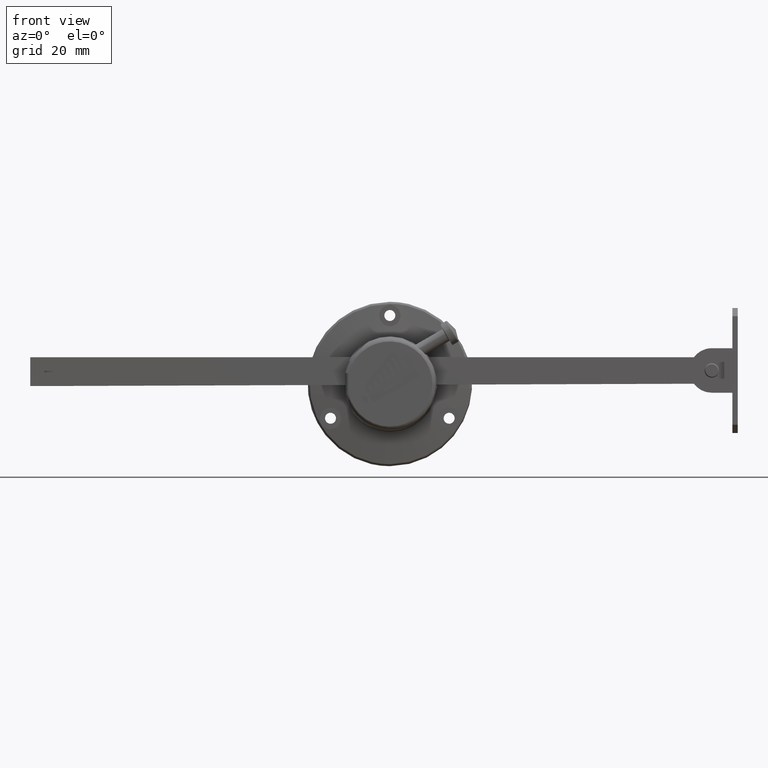
[diagram: clean part render]
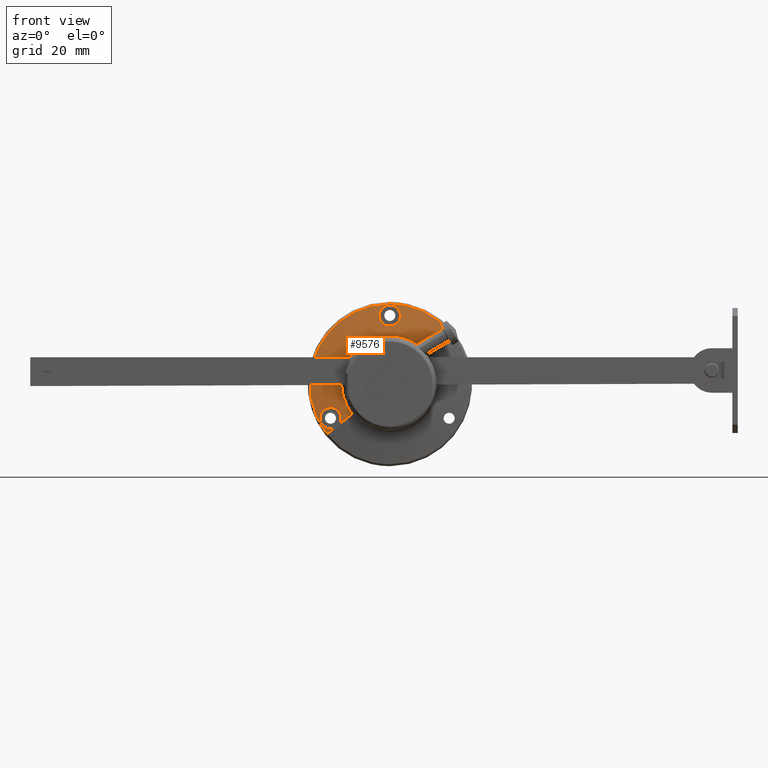
[diagram: same view with one face highlighted and labeled with its STEP entity id]
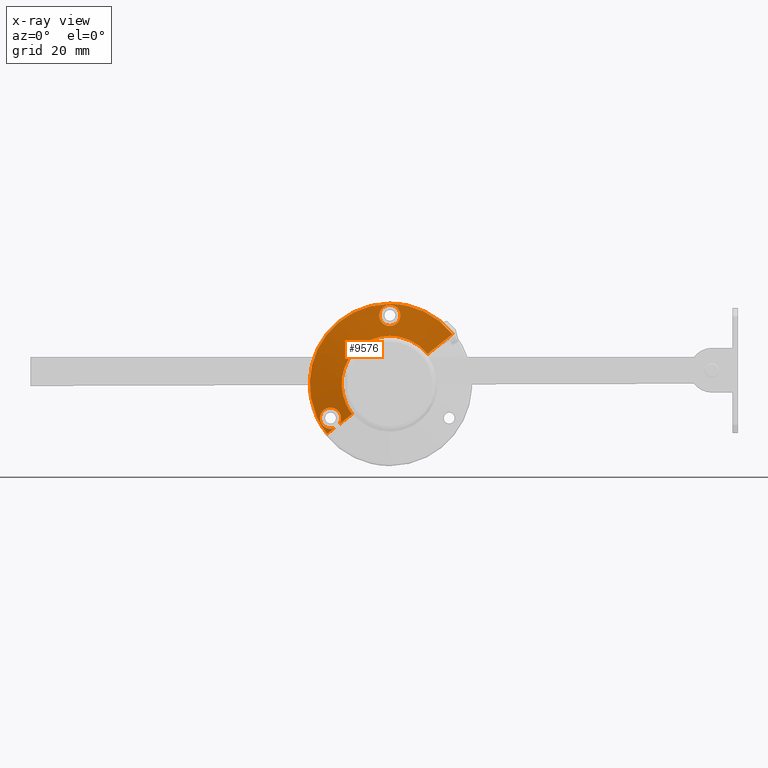
[diagram: x-ray of the same camera — body ghosted, the highlighted face saturated]
A machine part, front view. The second image highlights one B-rep face of the part: STEP entity #9576.
The next image is the same camera in x-ray: the body ghosted, the highlighted face saturated — about 0% of this face is hidden behind the body in this view.
In plain terms, the highlighted face is a freeform B-spline surface patch.
Its self-contained STEP definition (entity closure, byte-faithful):
#7901=CARTESIAN_POINT('',(-23.352887390696079,-3.874858132988049,1.174833772036257));
#7902=VERTEX_POINT('',#7901);
#7916=CARTESIAN_POINT('',(-1.144917E-013,-3.874858147016896,23.382420286659560));
#7917=VERTEX_POINT('',#7916);
#7918=CARTESIAN_POINT('',(-1.144917E-013,-3.874858147016896,23.382420286659560));
#7919=CARTESIAN_POINT('',(-22.235671195849012,-3.874858140002472,23.382420289567143));
#7920=CARTESIAN_POINT('',(-23.352887390696079,-3.874858132988049,1.174833772036257));
#7928=(BOUNDED_CURVE()B_SPLINE_CURVE(2,(#7918,#7919,#7920),.UNSPECIFIED.,.F.,.U.)B_SPLINE_CURVE_WITH_KNOTS((3,3),(0.0,0.241203951710024),.UNSPECIFIED.)CURVE()GEOMETRIC_REPRESENTATION_ITEM()RATIONAL_B_SPLINE_CURVE((1.0,0.717411992772506,0.980114737938071))REPRESENTATION_ITEM(''));
#7929=EDGE_CURVE('',#7917,#7902,#7928,.T.);
#7931=CARTESIAN_POINT('',(18.299272881391150,-3.874858140116030,14.555898898998050));
#7932=VERTEX_POINT('',#7931);
#7933=CARTESIAN_POINT('',(18.299272881391147,-3.874858140116030,14.555898898998041));
#7934=CARTESIAN_POINT('',(11.278340688014316,-3.874858144283119,23.382420285364109));
#7935=CARTESIAN_POINT('',(-1.144917E-013,-3.874858147016896,23.382420286659560));
#7943=(BOUNDED_CURVE()B_SPLINE_CURVE(2,(#7933,#7934,#7935),.UNSPECIFIED.,.F.,.U.)B_SPLINE_CURVE_WITH_KNOTS((3,3),(0.857863877670425,1.0),.UNSPECIFIED.)CURVE()GEOMETRIC_REPRESENTATION_ITEM()RATIONAL_B_SPLINE_CURVE((0.856305618554457,0.833477174484913,1.0))REPRESENTATION_ITEM(''));
#7944=EDGE_CURVE('',#7932,#7917,#7943,.T.);
#8029=CARTESIAN_POINT('',(-18.299272881391349,-3.874858140116030,-14.555898898997970));
#8030=VERTEX_POINT('',#8029);
#8044=CARTESIAN_POINT('',(-23.352887390696079,-3.874858132988049,1.174833772036257));
#8045=CARTESIAN_POINT('',(-23.382420400872768,-3.874858133187922,0.587788089782957));
#8046=CARTESIAN_POINT('',(-23.382420399423150,-3.874858133397013,5.667491E-009));
#8047=CARTESIAN_POINT('',(-23.382420379285172,-3.874858136301691,-8.165506730892572));
#8048=CARTESIAN_POINT('',(-18.299272881391349,-3.874858140116030,-14.555898898997972));
#8056=(BOUNDED_CURVE()B_SPLINE_CURVE(2,(#8044,#8045,#8046,#8047,#8048),.UNSPECIFIED.,.F.,.U.)B_SPLINE_CURVE_WITH_KNOTS((3,2,3),(0.241203951710024,0.250000000000000,0.357863877670426),.UNSPECIFIED.)CURVE()GEOMETRIC_REPRESENTATION_ITEM()RATIONAL_B_SPLINE_CURVE((0.980114737938071,0.989694788414041,1.0,0.873629606701634,0.856305618554456))REPRESENTATION_ITEM(''));
#8057=EDGE_CURVE('',#7902,#8030,#8056,.T.);
#8693=CARTESIAN_POINT('',(-2.881011489573469,-4.397045591571519,18.855543512198079));
#8694=VERTEX_POINT('',#8693);
#8700=CARTESIAN_POINT('',(2.198336219575596,-4.533402191943900,17.814290130344350));
#8701=VERTEX_POINT('',#8700);
#8702=CARTESIAN_POINT('',(-2.881011489573469,-4.397045591571519,18.855543512198079));
#8703=CARTESIAN_POINT('',(-2.875618866733810,-4.398770381099569,18.841972541301370));
#8704=CARTESIAN_POINT('',(-2.870127798608516,-4.400493277091499,18.828431661018470));
#8705=CARTESIAN_POINT('',(-2.845223401329175,-4.408161260421270,18.768233462741811));
#8706=CARTESIAN_POINT('',(-2.824722572479440,-4.414085084619106,18.721908504626299));
#8707=CARTESIAN_POINT('',(-2.781306414099857,-4.425883654190328,18.629996269562419));
#8708=CARTESIAN_POINT('',(-2.758327721357979,-4.431772685859257,18.584299140820072));
#8709=CARTESIAN_POINT('',(-2.686417500051062,-4.449187904192584,18.449675248120109));
#8710=CARTESIAN_POINT('',(-2.634406094023323,-4.460500983143810,18.362910128414509));
#8711=CARTESIAN_POINT('',(-2.466486175163476,-4.493540484598683,18.111322432733289));
#8712=CARTESIAN_POINT('',(-2.338806597604011,-4.514378750975107,17.955123919322169));
#8713=CARTESIAN_POINT('',(-2.158891276880443,-4.538746495380861,17.774740717255298));
#8714=CARTESIAN_POINT('',(-2.121798412040752,-4.543544662252446,17.739344310855479));
#8715=CARTESIAN_POINT('',(-2.046325353136025,-4.552864846563949,17.670805846164690));
#8716=CARTESIAN_POINT('',(-2.007872736275088,-4.557397628215186,17.637583598933698));
#8717=CARTESIAN_POINT('',(-1.890401847541414,-4.570613952735581,17.541005434573059));
#8718=CARTESIAN_POINT('',(-1.728149141709482,-4.587218756903831,17.420456259033500));
#8719=CARTESIAN_POINT('',(-1.554771202748181,-4.601744200015722,17.316159177886650));
#8720=CARTESIAN_POINT('',(-1.420490849517039,-4.611819071272675,17.244136857908771));
#8721=CARTESIAN_POINT('',(-1.375021651168171,-4.615040590725268,17.221164679772059));
#8722=CARTESIAN_POINT('',(-1.282636464859217,-4.621200457968397,17.177332077507550));
#8723=CARTESIAN_POINT('',(-1.235658006603230,-4.624141369008950,17.156453722238030));
#8724=CARTESIAN_POINT('',(-0.999752911912671,-4.637960789196627,17.058530137347791));
#8725=CARTESIAN_POINT('',(-0.805869341606383,-4.646344406056004,16.999712541798189));
#8726=CARTESIAN_POINT('',(-0.507466352145983,-4.654854674034549,16.940136579146770));
#8727=CARTESIAN_POINT('',(-0.406726720800428,-4.657009978446853,16.925087265836879));
#8728=CARTESIAN_POINT('',(-0.253645037807139,-4.659176366820290,16.909968951780190));
#8729=CARTESIAN_POINT('',(-0.202347659339416,-4.659718369358437,16.906189044085629));
#8730=CARTESIAN_POINT('',(-0.100249859302018,-4.660433831036541,16.901200082067330));
#8731=CARTESIAN_POINT('',(-0.049308003543616,-4.660609516177406,16.899975499700581));
#8732=CARTESIAN_POINT('',(0.204874585605556,-4.660591543353591,16.900100770311958));
#8733=CARTESIAN_POINT('',(0.406550335357039,-4.657728946451349,16.920015437777600));
#8734=CARTESIAN_POINT('',(0.706537350414431,-4.649179220430385,16.979867246492631));
#8735=CARTESIAN_POINT('',(0.806571056993574,-4.645590569276730,17.005029492489701));
#8736=CARTESIAN_POINT('',(1.001714891670723,-4.637134594499355,17.064531959126931));
#8737=CARTESIAN_POINT('',(1.192694267226789,-4.627392293112871,17.133265430607072));
#8738=CARTESIAN_POINT('',(1.375538148301022,-4.615189973167075,17.220039596444451));
#8739=CARTESIAN_POINT('',(1.554292243496929,-4.601782105364642,17.315887353793670));
#8740=CARTESIAN_POINT('',(1.641778449323321,-4.594461089184584,17.368451104431099));
#8741=CARTESIAN_POINT('',(1.896906036479060,-4.570770301063488,17.539574962966039));
#8742=CARTESIAN_POINT('',(2.054069907485744,-4.552999311014955,17.669190409089619));
#8743=CARTESIAN_POINT('',(2.198336219575596,-4.533402191943900,17.814290130344350));
#8744=B_SPLINE_CURVE_WITH_KNOTS('',3,(#8702,#8703,#8704,#8705,#8706,#8707,#8708,#8709,#8710,#8711,#8712,#8713,#8714,#8715,#8716,#8717,#8718,#8719,#8720,#8721,#8722,#8723,#8724,#8725,#8726,#8727,#8728,#8729,#8730,#8731,#8732,#8733,#8734,#8735,#8736,#8737,#8738,#8739,#8740,#8741,#8742,#8743),.UNSPECIFIED.,.F.,.U.,(4,2,2,2,2,2,2,2,1,2,2,2,2,2,2,2,2,2,1,2,2,4),(0.685239153095898,0.687500000000005,0.695312500000005,0.703125000000005,0.718750000000004,0.750000000000003,0.757812500000003,0.765625000000003,0.781250000000003,0.796875000000003,0.804687500000003,0.812500000000003,0.843750000000002,0.859375000000002,0.867187500000002,0.875000000000002,0.906250000000001,0.921875000000001,0.937500000000001,0.953125000000001,0.968750000000000,1.0),.UNSPECIFIED.);
#8745=EDGE_CURVE('',#8694,#8701,#8744,.T.);
#8747=CARTESIAN_POINT('',(2.881010551223967,-4.122445095032800,21.144456114891199));
#8748=VERTEX_POINT('',#8747);
#8749=CARTESIAN_POINT('',(2.198336219575596,-4.533402191943900,17.814290130344350));
#8750=CARTESIAN_POINT('',(2.342602544981720,-4.513805072872928,17.959389856891701));
#8751=CARTESIAN_POINT('',(2.470122184730841,-4.492907325949953,18.116096341114840));
#8752=CARTESIAN_POINT('',(2.637431151129929,-4.459863158295782,18.367791092159269));
#8753=CARTESIAN_POINT('',(2.689175331640133,-4.448562961485179,18.454482886253540));
#8754=CARTESIAN_POINT('',(2.784449010925277,-4.425401949167918,18.633570074821481));
#8755=CARTESIAN_POINT('',(2.828071721297434,-4.413497384623918,18.726315748384739));
#8756=CARTESIAN_POINT('',(2.943750115718965,-4.377711282427292,19.007336386291829));
#8757=CARTESIAN_POINT('',(3.001787709352631,-4.353545968318763,19.200009308385411));
#8758=CARTESIAN_POINT('',(3.060569364031077,-4.316887989051838,19.496916291108750));
#8759=CARTESIAN_POINT('',(3.075439055818446,-4.304571570274265,19.597437321096368));
#8760=CARTESIAN_POINT('',(3.095236410886192,-4.279911035713054,19.800266317089928));
#8761=CARTESIAN_POINT('',(3.100069350229085,-4.267713351304401,19.901366058570229));
#8762=CARTESIAN_POINT('',(3.099858549798542,-4.231497047848994,20.203750332411119));
#8763=CARTESIAN_POINT('',(3.080242618294295,-4.207853796053113,20.404128715870190));
#8764=CARTESIAN_POINT('',(3.030858387213139,-4.178879024191720,20.653048284983001));
#8765=CARTESIAN_POINT('',(3.019696881884091,-4.173099561517766,20.702871439707788));
#8766=CARTESIAN_POINT('',(2.994952844115816,-4.161664448980542,20.801782346865849));
#8767=CARTESIAN_POINT('',(2.981408939989832,-4.156023276188992,20.850743898419822));
#8768=CARTESIAN_POINT('',(2.941508630329513,-4.140905099149601,20.982383237382781));
#8769=CARTESIAN_POINT('',(2.912924547650571,-4.131571181384935,21.064121909844090));
#8770=CARTESIAN_POINT('',(2.881010551223967,-4.122445095032800,21.144456114891199));
#8771=B_SPLINE_CURVE_WITH_KNOTS('',3,(#8749,#8750,#8751,#8752,#8753,#8754,#8755,#8756,#8757,#8758,#8759,#8760,#8761,#8762,#8763,#8764,#8765,#8766,#8767,#8768,#8769,#8770),.UNSPECIFIED.,.F.,.U.,(4,2,2,2,2,2,2,2,2,2,4),(0.0,0.031250000000001,0.046875000000002,0.062500000000002,0.093750000000003,0.109375000000004,0.125000000000004,0.156250000000005,0.164062500000005,0.171875000000005,0.185277388826687),.UNSPECIFIED.);
#8772=EDGE_CURVE('',#8701,#8748,#8771,.T.);
#8802=CARTESIAN_POINT('',(-2.198675755297284,-4.006781863743737,22.185366084447232));
#8803=VERTEX_POINT('',#8802);
#8804=CARTESIAN_POINT('',(2.881010551223967,-4.122445095032800,21.144456114891199));
#8805=CARTESIAN_POINT('',(2.875718032869457,-4.120931652783272,21.157778494242780));
#8806=CARTESIAN_POINT('',(2.832483626450765,-4.108824579571698,21.264447297284480));
#8807=CARTESIAN_POINT('',(2.783358030284652,-4.097083396263708,21.368631152131169));
#8808=CARTESIAN_POINT('',(2.711990868571036,-4.082074955591593,21.502552060653251));
#8809=CARTESIAN_POINT('',(2.687057254741225,-4.077140595810178,21.546709281154119));
#8810=CARTESIAN_POINT('',(2.634861872341323,-4.067408351365118,21.634040768502970));
#8811=CARTESIAN_POINT('',(2.607522639179905,-4.062597884382090,21.677328696265420));
#8812=CARTESIAN_POINT('',(2.465882423785637,-4.039054494003634,21.889745918724032));
#8813=CARTESIAN_POINT('',(2.337614990046211,-4.021925904286033,22.046075094607708));
#8814=CARTESIAN_POINT('',(2.123468757466911,-3.998583341886869,22.260773400710800));
#8815=CARTESIAN_POINT('',(2.048436243358250,-3.991197301155861,22.329016385499049));
#8816=CARTESIAN_POINT('',(1.930257369702268,-3.980711354154560,22.426253860504509));
#8817=CARTESIAN_POINT('',(1.889805977280681,-3.977305987709785,22.457894999057942));
#8818=CARTESIAN_POINT('',(1.807701837887476,-3.970752388587385,22.518894314685909));
#8819=CARTESIAN_POINT('',(1.766045730490508,-3.967602527550614,22.548267152638910));
#8820=CARTESIAN_POINT('',(1.554799684238860,-3.952470562161673,22.689598621439320));
#8821=CARTESIAN_POINT('',(1.376398013257279,-3.942321472246035,22.785117147685121));
#8822=CARTESIAN_POINT('',(1.141640771297999,-3.932001630950604,22.882575246435930));
#8823=CARTESIAN_POINT('',(1.094096264910282,-3.930057166529324,22.900959982380101));
#8824=CARTESIAN_POINT('',(0.997799298009642,-3.926410060465615,22.935474759015399));
#8825=CARTESIAN_POINT('',(0.948930224810906,-3.924704226974871,22.951635113329900));
#8826=CARTESIAN_POINT('',(0.802014141479249,-3.920003156803443,22.996205726012800));
#8827=CARTESIAN_POINT('',(0.703299588844545,-3.917406874112438,23.020869482765580));
#8828=CARTESIAN_POINT('',(0.404908134137304,-3.911174183092902,23.080126928798929));
#8829=CARTESIAN_POINT('',(0.203005233076003,-3.909077309399963,23.100129512615869));
#8830=CARTESIAN_POINT('',(-0.053212403376664,-3.909094386332443,23.099966795376940));
#8831=CARTESIAN_POINT('',(-0.104673069018309,-3.909232112890076,23.098654344388169));
#8832=CARTESIAN_POINT('',(-0.206825679961797,-3.909771487444024,23.093515534586910));
#8833=CARTESIAN_POINT('',(-0.257662860518794,-3.910172853314073,23.089691867720092));
#8834=CARTESIAN_POINT('',(-0.409469018711405,-3.911765883083447,23.074521030628670));
#8835=CARTESIAN_POINT('',(-0.609999531038620,-3.914925051202546,23.044444431976089));
#8836=CARTESIAN_POINT('',(-0.806818288191136,-3.920140707642016,22.994900194489610));
#8837=CARTESIAN_POINT('',(-1.001748687994036,-3.926411225554346,22.935452693892120));
#8838=CARTESIAN_POINT('',(-1.098767112168206,-3.930099106371904,22.900539597367150));
#8839=CARTESIAN_POINT('',(-1.381406226684296,-3.942578508915083,22.782695341431321));
#8840=CARTESIAN_POINT('',(-1.559704281359658,-3.952777727130764,22.686717302697492));
#8841=CARTESIAN_POINT('',(-1.812254198829331,-3.970935440786732,22.517144525776480));
#8842=CARTESIAN_POINT('',(-1.893950456069795,-3.977469275938773,22.456311073493300));
#8843=CARTESIAN_POINT('',(-2.052114844025609,-3.991545150721936,22.325798159363011));
#8844=CARTESIAN_POINT('',(-2.127282043301049,-3.998971270774437,22.257194611557100));
#8845=CARTESIAN_POINT('',(-2.198675755297284,-4.006781863743737,22.185366084447232));
#8846=B_SPLINE_CURVE_WITH_KNOTS('',3,(#8804,#8805,#8806,#8807,#8808,#8809,#8810,#8811,#8812,#8813,#8814,#8815,#8816,#8817,#8818,#8819,#8820,#8821,#8822,#8823,#8824,#8825,#8826,#8827,#8828,#8829,#8830,#8831,#8832,#8833,#8834,#8835,#8836,#8837,#8838,#8839,#8840,#8841,#8842,#8843,#8844,#8845),.UNSPECIFIED.,.F.,.U.,(4,1,2,2,2,2,2,2,2,2,2,2,2,2,2,2,1,2,2,2,2,4),(0.185277388826687,0.187500000000005,0.203125000000004,0.210937500000004,0.218750000000004,0.250000000000005,0.265625000000005,0.273437500000005,0.281250000000005,0.312500000000006,0.320312500000006,0.328125000000006,0.343750000000006,0.375000000000006,0.382812500000006,0.390625000000006,0.406250000000007,0.421875000000007,0.437500000000007,0.468750000000007,0.484375000000007,0.500000000000007),.UNSPECIFIED.);
#8847=EDGE_CURVE('',#8748,#8803,#8846,.T.);
#8849=CARTESIAN_POINT('',(-2.198675755297284,-4.006781863743737,22.185366084447232));
#8850=CARTESIAN_POINT('',(-2.341463125860142,-4.022403049682542,22.041709051459002));
#8851=CARTESIAN_POINT('',(-2.469261701024944,-4.039550601367358,21.885241886228659));
#8852=CARTESIAN_POINT('',(-2.638168540702028,-4.067725804521712,21.631077424675262));
#8853=CARTESIAN_POINT('',(-2.690709243463003,-4.077557252382687,21.542846436243359));
#8854=CARTESIAN_POINT('',(-2.785827015549274,-4.097647107738659,21.363619746155731));
#8855=CARTESIAN_POINT('',(-2.871625624794729,-4.118259826550492,21.180757789838371));
#8856=CARTESIAN_POINT('',(-2.939147552620192,-4.139939281849677,20.990771069639411));
#8857=CARTESIAN_POINT('',(-2.982873563127302,-4.156616952143576,20.845586842025192));
#8858=CARTESIAN_POINT('',(-2.996294303657463,-4.162245962229499,20.796742278048999));
#8859=CARTESIAN_POINT('',(-3.020790995940628,-4.173647942054439,20.698139893379441));
#8860=CARTESIAN_POINT('',(-3.031892218026758,-4.179437021150926,20.648243962424399));
#8861=CARTESIAN_POINT('',(-3.081037242149632,-4.208528295850957,20.398381105943109));
#8862=CARTESIAN_POINT('',(-3.100233542022091,-4.232210953248795,20.197733794164250));
#8863=CARTESIAN_POINT('',(-3.099878817106955,-4.268398596210714,19.895674415821539));
#8864=CARTESIAN_POINT('',(-3.094867137548398,-4.280571990908308,19.794805171402050));
#8865=CARTESIAN_POINT('',(-3.079818288479714,-4.299006830510097,19.643220480313431));
#8866=CARTESIAN_POINT('',(-3.073521054637959,-4.305197616509010,19.592509600689102));
#8867=CARTESIAN_POINT('',(-3.058501292694257,-4.317525647434426,19.491915677910399));
#8868=CARTESIAN_POINT('',(-3.049782198981332,-4.323668108865257,19.441988536220581));
#8869=CARTESIAN_POINT('',(-3.003117394751514,-4.352502896326314,19.208511524043018));
#8870=CARTESIAN_POINT('',(-2.950157146800496,-4.374929902270940,19.029553916148512));
#8871=CARTESIAN_POINT('',(-2.881011489573469,-4.397045591571519,18.855543512198079));
#8872=B_SPLINE_CURVE_WITH_KNOTS('',3,(#8849,#8850,#8851,#8852,#8853,#8854,#8855,#8856,#8857,#8858,#8859,#8860,#8861,#8862,#8863,#8864,#8865,#8866,#8867,#8868,#8869,#8870,#8871),.UNSPECIFIED.,.F.,.U.,(4,2,2,1,2,2,2,2,2,2,2,4),(0.500000000000007,0.531250000000008,0.546875000000008,0.562500000000008,0.578125000000008,0.585937500000008,0.593750000000008,0.625000000000007,0.640625000000006,0.648437500000006,0.656250000000006,0.685239153095899),.UNSPECIFIED.);
#8873=EDGE_CURVE('',#8803,#8694,#8872,.T.);
#9097=CARTESIAN_POINT('',(-14.749868061871680,-4.424597949591257,-11.732574594027280));
#9098=VERTEX_POINT('',#9097);
#9099=CARTESIAN_POINT('',(-14.439992655166099,-4.655942225652547,-8.854297803715561));
#9100=VERTEX_POINT('',#9099);
#9101=CARTESIAN_POINT('',(-14.749868061871680,-4.424597949591257,-11.732574594027280));
#9102=CARTESIAN_POINT('',(-14.746115828889231,-4.425374020587884,-11.727006673172790));
#9103=CARTESIAN_POINT('',(-14.742381254033660,-4.426149324782238,-11.721426231574521));
#9104=CARTESIAN_POINT('',(-14.682939142149440,-4.438535879619683,-11.631982651663449));
#9105=CARTESIAN_POINT('',(-14.631206773164759,-4.449973620856503,-11.545300738228059));
#9106=CARTESIAN_POINT('',(-14.535914664488200,-4.472471842124322,-11.366138815751000));
#9107=CARTESIAN_POINT('',(-14.492260656789369,-4.483567417474593,-11.273305099431511));
#9108=CARTESIAN_POINT('',(-14.376480088457290,-4.515537621551006,-10.991894166776911));
#9109=CARTESIAN_POINT('',(-14.318357571738691,-4.535332447586947,-10.798788020509180));
#9110=CARTESIAN_POINT('',(-14.259573118544299,-4.562574801050166,-10.500918697721140));
#9111=CARTESIAN_POINT('',(-14.244723430594069,-4.571262471133490,-10.400023165109619));
#9112=CARTESIAN_POINT('',(-14.225039582685630,-4.587667681662493,-10.196326948952951));
#9113=CARTESIAN_POINT('',(-14.220303303827860,-4.595286628302706,-10.094778999125939));
#9114=CARTESIAN_POINT('',(-14.220938270113100,-4.616394839430364,-9.791004600968760));
#9115=CARTESIAN_POINT('',(-14.241011761444129,-4.628151128980834,-9.589639249155145));
#9116=CARTESIAN_POINT('',(-14.291282291346411,-4.639723194023996,-9.339397610737938));
#9117=CARTESIAN_POINT('',(-14.302642256305569,-4.641885378702541,-9.289288730004282));
#9118=CARTESIAN_POINT('',(-14.327782687506449,-4.645856369574151,-9.189926399998440));
#9119=CARTESIAN_POINT('',(-14.341535938956911,-4.647663247881020,-9.140746770205199));
#9120=CARTESIAN_POINT('',(-14.381136955528961,-4.651992234796305,-9.011465617897207));
#9121=CARTESIAN_POINT('',(-14.408998550908221,-4.654207789116779,-8.932217790266876));
#9122=CARTESIAN_POINT('',(-14.439992655166099,-4.655942225652547,-8.854297803715561));
#9123=B_SPLINE_CURVE_WITH_KNOTS('',3,(#9101,#9102,#9103,#9104,#9105,#9106,#9107,#9108,#9109,#9110,#9111,#9112,#9113,#9114,#9115,#9116,#9117,#9118,#9119,#9120,#9121,#9122),.UNSPECIFIED.,.F.,.U.,(4,2,2,2,2,2,2,2,2,2,4),(0.030207792336529,0.031250000000001,0.046875000000002,0.062500000000002,0.093750000000004,0.109375000000004,0.125000000000005,0.156250000000006,0.164062500000006,0.171875000000007,0.184807173107999),.UNSPECIFIED.);
#9124=EDGE_CURVE('',#9098,#9100,#9123,.T.);
#9133=CARTESIAN_POINT('',(-20.201024589663611,-3.912508571054803,-11.145702631432680));
#9134=VERTEX_POINT('',#9133);
#9140=CARTESIAN_POINT('',(-16.210609450006110,-4.198355040236008,-12.894500901251190));
#9141=VERTEX_POINT('',#9140);
#9142=CARTESIAN_POINT('',(-20.201024589663611,-3.912508571054803,-11.145702631432680));
#9143=CARTESIAN_POINT('',(-20.194943325166200,-3.912258983472782,-11.160986853036469));
#9144=CARTESIAN_POINT('',(-20.188736985765200,-3.912022794176695,-11.176233160483170));
#9145=CARTESIAN_POINT('',(-20.162843794941281,-3.911111597474866,-11.238429846691989));
#9146=CARTESIAN_POINT('',(-20.142077187243089,-3.910552244799825,-11.285052916920950));
#9147=CARTESIAN_POINT('',(-20.098089040089821,-3.909695982331918,-11.377554876704799));
#9148=CARTESIAN_POINT('',(-20.074826754484050,-3.909399579134789,-11.423494681731130));
#9149=CARTESIAN_POINT('',(-20.002112453578160,-3.908915074028040,-11.558672598108370));
#9150=CARTESIAN_POINT('',(-19.949524759920720,-3.909124419065089,-11.645766069008520));
#9151=CARTESIAN_POINT('',(-19.779757676293720,-3.911307735929243,-11.898214203872230));
#9152=CARTESIAN_POINT('',(-19.650690915070669,-3.914820008694944,-12.054822431455131));
#9153=CARTESIAN_POINT('',(-19.468826021583649,-3.921898318674040,-12.235475741023491));
#9154=CARTESIAN_POINT('',(-19.431471302609530,-3.923448251980595,-12.270778814457479));
#9155=CARTESIAN_POINT('',(-19.355520188077168,-3.926785892593620,-12.339087040859139));
#9156=CARTESIAN_POINT('',(-19.316828234086611,-3.928577223525217,-12.372188902413541));
#9157=CARTESIAN_POINT('',(-19.198638107246239,-3.934314971099401,-12.468388853410691));
#9158=CARTESIAN_POINT('',(-19.035423223529740,-3.942933420734601,-12.588388455827950));
#9159=CARTESIAN_POINT('',(-18.861073627367499,-3.953494739647694,-12.692030136594640));
#9160=CARTESIAN_POINT('',(-18.681055452387291,-3.965061799316028,-12.787342806218939));
#9161=CARTESIAN_POINT('',(-18.587751300291821,-3.971383279334512,-12.830983454643050));
#9162=CARTESIAN_POINT('',(-18.304881545400342,-3.991521094312512,-12.946610036543920));
#9163=CARTESIAN_POINT('',(-18.111134677452512,-4.006567373013994,-13.004318792955290));
#9164=CARTESIAN_POINT('',(-17.812907232397119,-4.031651576206826,-13.062319007428600));
#9165=CARTESIAN_POINT('',(-17.712047911844198,-4.040450792514857,-13.076874019113530));
#9166=CARTESIAN_POINT('',(-17.508411558914780,-4.058880636871395,-13.095989314496130));
#9167=CARTESIAN_POINT('',(-17.406976577221268,-4.068388799221729,-13.100441386699281));
#9168=CARTESIAN_POINT('',(-17.103784559052109,-4.097795424167063,-13.099013945925620));
#9169=CARTESIAN_POINT('',(-16.903130118440050,-4.118567927017645,-13.078488142339101));
#9170=CARTESIAN_POINT('',(-16.654194187372610,-4.146121695034521,-13.027970757925599));
#9171=CARTESIAN_POINT('',(-16.604373999284139,-4.151727238752340,-13.016579224279740));
#9172=CARTESIAN_POINT('',(-16.505591146007738,-4.163028190248150,-12.991405802862801));
#9173=CARTESIAN_POINT('',(-16.456706331389721,-4.168714119670932,-12.977651805045189));
#9174=CARTESIAN_POINT('',(-16.341472978534249,-4.182340113555728,-12.942173094368281));
#9175=CARTESIAN_POINT('',(-16.275573920042412,-4.190312649672562,-12.919413033951731));
#9176=CARTESIAN_POINT('',(-16.210609450006110,-4.198355040236008,-12.894500901251190));
#9177=B_SPLINE_CURVE_WITH_KNOTS('',3,(#9142,#9143,#9144,#9145,#9146,#9147,#9148,#9149,#9150,#9151,#9152,#9153,#9154,#9155,#9156,#9157,#9158,#9159,#9160,#9161,#9162,#9163,#9164,#9165,#9166,#9167,#9168,#9169,#9170,#9171,#9172,#9173,#9174,#9175,#9176),.UNSPECIFIED.,.F.,.U.,(4,2,2,2,2,2,2,2,1,2,2,2,2,2,2,2,2,4),(0.684971380130689,0.687500000000009,0.695312500000009,0.703125000000008,0.718750000000008,0.750000000000006,0.757812500000005,0.765625000000005,0.781250000000004,0.796875000000004,0.812500000000003,0.843750000000002,0.859375000000001,0.875000000000000,0.906249999999998,0.914062499999998,0.921874999999998,0.932667476294536),.UNSPECIFIED.);
#9178=EDGE_CURVE('',#9134,#9141,#9177,.T.);
#9224=CARTESIAN_POINT('',(-19.516064219369309,-4.161050946051370,-7.811499778391505));
#9225=VERTEX_POINT('',#9224);
#9226=CARTESIAN_POINT('',(-14.439992655166099,-4.655942225652547,-8.854297803715561));
#9227=CARTESIAN_POINT('',(-14.446446460001191,-4.656303382072816,-8.838072761890006));
#9228=CARTESIAN_POINT('',(-14.491272074801850,-4.658618228710019,-8.728094324936194));
#9229=CARTESIAN_POINT('',(-14.542365059517589,-4.659968627030141,-8.620772532716559));
#9230=CARTESIAN_POINT('',(-14.614666902762830,-4.660624822530581,-8.486392154785198));
#9231=CARTESIAN_POINT('',(-14.639924377998909,-4.660664698348130,-8.442089056017641));
#9232=CARTESIAN_POINT('',(-14.692793814398790,-4.660380373566874,-8.354480857239370));
#9233=CARTESIAN_POINT('',(-14.720485047151289,-4.660054268472405,-8.311065010344956));
#9234=CARTESIAN_POINT('',(-14.863515941576541,-4.657522708367358,-8.098642721129703));
#9235=CARTESIAN_POINT('',(-14.992922482103120,-4.652648704156993,-7.942461445174375));
#9236=CARTESIAN_POINT('',(-15.208827223417700,-4.641281091617731,-7.728198393032478));
#9237=CARTESIAN_POINT('',(-15.284454500453140,-4.636811721602217,-7.660136516483551));
#9238=CARTESIAN_POINT('',(-15.403542664194260,-4.629077557935843,-7.563227302799366));
#9239=CARTESIAN_POINT('',(-15.444204991705060,-4.626325185929722,-7.531783603490892));
#9240=CARTESIAN_POINT('',(-15.526508391784080,-4.620541641741968,-7.471330264121545));
#9241=CARTESIAN_POINT('',(-15.568259668957349,-4.617503550986416,-7.442227417857260));
#9242=CARTESIAN_POINT('',(-15.779962132799440,-4.601604161068067,-7.302233680925295));
#9243=CARTESIAN_POINT('',(-15.958667046017331,-4.586634999144014,-7.207746130153330));
#9244=CARTESIAN_POINT('',(-16.240786534912221,-4.561004860947336,-7.092333622121314));
#9245=CARTESIAN_POINT('',(-16.337702323110939,-4.551876450056347,-7.058157938644728));
#9246=CARTESIAN_POINT('',(-16.532631139393370,-4.532921016762391,-7.000068013900803));
#9247=CARTESIAN_POINT('',(-16.630880503064649,-4.523075946890558,-6.975998259840697));
#9248=CARTESIAN_POINT('',(-16.927930582294358,-4.492512734645269,-6.918348404145208));
#9249=CARTESIAN_POINT('',(-17.129044214708930,-4.470774119391684,-6.899185930336162));
#9250=CARTESIAN_POINT('',(-17.537486003695879,-4.424701267028140,-6.900866719794773));
#9251=CARTESIAN_POINT('',(-17.738162961176780,-4.401118978246625,-6.921675439589428));
#9252=CARTESIAN_POINT('',(-18.034098874934070,-4.365051657677314,-6.981570359828918));
#9253=CARTESIAN_POINT('',(-18.131891192967149,-4.352911852073897,-7.006351191328798));
#9254=CARTESIAN_POINT('',(-18.325733522441880,-4.328399203321003,-7.065754337232790));
#9255=CARTESIAN_POINT('',(-18.422062301783221,-4.315987398141785,-7.100547148686565));
#9256=CARTESIAN_POINT('',(-18.702297931101921,-4.279188624610766,-7.217617703475230));
#9257=CARTESIAN_POINT('',(-18.879485821328501,-4.254995744229630,-7.312932862056662));
#9258=CARTESIAN_POINT('',(-19.130943491076920,-4.219173353848446,-7.481566165005811));
#9259=CARTESIAN_POINT('',(-19.212548853214550,-4.207281927043666,-7.542241680943719));
#9260=CARTESIAN_POINT('',(-19.369946157328929,-4.183769668547756,-7.671868173684302));
#9261=CARTESIAN_POINT('',(-19.444845764081741,-4.172283522422525,-7.740051706222832));
#9262=CARTESIAN_POINT('',(-19.516064219369309,-4.161050946051370,-7.811499778391505));
#9263=B_SPLINE_CURVE_WITH_KNOTS('',3,(#9226,#9227,#9228,#9229,#9230,#9231,#9232,#9233,#9234,#9235,#9236,#9237,#9238,#9239,#9240,#9241,#9242,#9243,#9244,#9245,#9246,#9247,#9248,#9249,#9250,#9251,#9252,#9253,#9254,#9255,#9256,#9257,#9258,#9259,#9260,#9261,#9262),.UNSPECIFIED.,.F.,.U.,(4,1,2,2,2,2,2,2,2,2,2,2,2,2,2,2,2,2,4),(0.184807173107999,0.187500000000008,0.203125000000008,0.210937500000009,0.218750000000009,0.250000000000010,0.265625000000011,0.273437500000011,0.281250000000011,0.312500000000011,0.328125000000011,0.343750000000011,0.375000000000010,0.406250000000010,0.421875000000010,0.437500000000010,0.468750000000009,0.484375000000009,0.500000000000009),.UNSPECIFIED.);
#9264=EDGE_CURVE('',#9100,#9225,#9263,.T.);
#9266=CARTESIAN_POINT('',(-19.516064219369309,-4.161050946051370,-7.811499778391505));
#9267=CARTESIAN_POINT('',(-19.658501063865959,-4.138585793215627,-7.954395897436735));
#9268=CARTESIAN_POINT('',(-19.786317065861748,-4.117129253916295,-8.110258361853981));
#9269=CARTESIAN_POINT('',(-19.927377999805909,-4.091499195620521,-8.321663972413102));
#9270=CARTESIAN_POINT('',(-19.954710509245562,-4.086420864956574,-8.364890623234583));
#9271=CARTESIAN_POINT('',(-20.007122007405091,-4.076445542188418,-8.452514784526404));
#9272=CARTESIAN_POINT('',(-20.032146988618770,-4.071559525882809,-8.496807907212375));
#9273=CARTESIAN_POINT('',(-20.103745971222612,-4.057196526181409,-8.631102984879707));
#9274=CARTESIAN_POINT('',(-20.189958498423771,-4.038831207513188,-8.813931610583062));
#9275=CARTESIAN_POINT('',(-20.257956180319749,-4.021967889305092,-9.004174776012016));
#9276=CARTESIAN_POINT('',(-20.302035679195079,-4.009874345825783,-9.149671959947082));
#9277=CARTESIAN_POINT('',(-20.315573683198490,-4.005935655513153,-9.198640984574828));
#9278=CARTESIAN_POINT('',(-20.340298971561211,-3.998243751456744,-9.297535139636221));
#9279=CARTESIAN_POINT('',(-20.351512358326708,-3.994480475026966,-9.347601449313260));
#9280=CARTESIAN_POINT('',(-20.401183364302220,-3.976273838245346,-9.598411359993328));
#9281=CARTESIAN_POINT('',(-20.420669461372920,-3.963667904404340,-9.800000952059115));
#9282=CARTESIAN_POINT('',(-20.420424336916980,-3.947498721870772,-10.103749476460090));
#9283=CARTESIAN_POINT('',(-20.415394590760140,-3.942569339381503,-10.205228014594081));
#9284=CARTESIAN_POINT('',(-20.400213358731190,-3.935873902104968,-10.357798619100571));
#9285=CARTESIAN_POINT('',(-20.393853712420420,-3.933753782356620,-10.408850378689630));
#9286=CARTESIAN_POINT('',(-20.378681261321219,-3.929788461880615,-10.510086729362650));
#9287=CARTESIAN_POINT('',(-20.369869750674638,-3.927939828243537,-10.560333550766790));
#9288=CARTESIAN_POINT('',(-20.323036485451770,-3.919907055330723,-10.793598905780961));
#9289=CARTESIAN_POINT('',(-20.270098868830221,-3.915343516674025,-10.972096534907930));
#9290=CARTESIAN_POINT('',(-20.201024589663611,-3.912508571054803,-11.145702631432680));
#9291=B_SPLINE_CURVE_WITH_KNOTS('',3,(#9266,#9267,#9268,#9269,#9270,#9271,#9272,#9273,#9274,#9275,#9276,#9277,#9278,#9279,#9280,#9281,#9282,#9283,#9284,#9285,#9286,#9287,#9288,#9289,#9290),.UNSPECIFIED.,.F.,.U.,(4,2,2,2,1,2,2,2,2,2,2,2,4),(0.500000000000009,0.531250000000010,0.539062500000010,0.546875000000010,0.562500000000010,0.578125000000011,0.585937500000011,0.593750000000011,0.625000000000010,0.640625000000010,0.648437500000010,0.656250000000010,0.684971380130689),.UNSPECIFIED.);
#9292=EDGE_CURVE('',#9225,#9134,#9291,.T.);
#9494=CARTESIAN_POINT('',(-10.813873723197430,-5.034213565775300,-8.601743557741539));
#9495=CARTESIAN_POINT('',(-19.415617280939021,-5.034213565775299,2.212130165455780));
#9496=CARTESIAN_POINT('',(-8.601743557741710,-5.034213565775300,10.813873723197380));
#9497=CARTESIAN_POINT('',(2.212130165455608,-5.034213565775299,19.415617280938978));
#9498=CARTESIAN_POINT('',(10.813873723197201,-5.034213565775300,8.601743557741653));
#9499=CARTESIAN_POINT('',(-18.486407914135480,-3.845874247168367,-14.704752825075600));
#9500=CARTESIAN_POINT('',(-33.191160739211142,-3.845874247168367,3.781655089059770));
#9501=CARTESIAN_POINT('',(-14.704752825075770,-3.845874247168367,18.486407914135420));
#9502=CARTESIAN_POINT('',(3.781655089059599,-3.845874247168367,33.191160739211085));
#9503=CARTESIAN_POINT('',(18.486407914135249,-3.845874247168367,14.704752825075710));
#9511=(BOUNDED_SURFACE()B_SPLINE_SURFACE(2,1,((#9494,#9499),(#9495,#9500),(#9496,#9501),(#9497,#9502),(#9498,#9503)),.UNSPECIFIED.,.F.,.F.,.U.)B_SPLINE_SURFACE_WITH_KNOTS((3,2,3),(2,2),(0.0,39.137444763639088,78.274889527278177),(0.0,9.875558382411905),.UNSPECIFIED.)GEOMETRIC_REPRESENTATION_ITEM()RATIONAL_B_SPLINE_SURFACE(((1.0,1.0),(0.707106781186548,0.707106781186548),(1.0,1.0),(0.707106781186548,0.707106781186548),(1.0,1.0)))REPRESENTATION_ITEM('')SURFACE());
#9512=ORIENTED_EDGE('',*,*,#8057,.T.);
#9513=CARTESIAN_POINT('',(-16.210609450006110,-4.198355040236008,-12.894500901251190));
#9514=CARTESIAN_POINT('',(-18.299272881391349,-3.874858140116030,-14.555898898997970));
#9515=QUASI_UNIFORM_CURVE('',1,(#9513,#9514),.UNSPECIFIED.,.F.,.U.);
#9516=EDGE_CURVE('',#9141,#8030,#9515,.T.);
#9517=ORIENTED_EDGE('',*,*,#9516,.F.);
#9518=ORIENTED_EDGE('',*,*,#9178,.F.);
#9519=ORIENTED_EDGE('',*,*,#9292,.F.);
#9520=ORIENTED_EDGE('',*,*,#9264,.F.);
#9521=ORIENTED_EDGE('',*,*,#9124,.F.);
#9522=CARTESIAN_POINT('',(-10.996444435348019,-5.005936603998247,-8.746966860166657));
#9523=VERTEX_POINT('',#9522);
#9524=CARTESIAN_POINT('',(-10.996444435348019,-5.005936603998247,-8.746966860166657));
#9525=CARTESIAN_POINT('',(-14.749868061871680,-4.424597949591257,-11.732574594027280));
#9526=QUASI_UNIFORM_CURVE('',1,(#9524,#9525),.UNSPECIFIED.,.F.,.U.);
#9527=EDGE_CURVE('',#9523,#9098,#9526,.T.);
#9528=ORIENTED_EDGE('',*,*,#9527,.F.);
#9529=CARTESIAN_POINT('',(-1.136868E-013,-5.005936604000000,14.051022008101199));
#9530=VERTEX_POINT('',#9529);
#9531=CARTESIAN_POINT('',(-1.136868E-013,-5.005936604000000,14.051022008101199));
#9532=CARTESIAN_POINT('',(-14.051022008103978,-5.005936603999579,14.051022008099025));
#9533=CARTESIAN_POINT('',(-14.051022008109641,-5.005936603998701,-6.610342E-012));
#9534=CARTESIAN_POINT('',(-14.051022008111618,-5.005936603998396,-4.906836551072106));
#9535=CARTESIAN_POINT('',(-10.996444435348023,-5.005936603998247,-8.746966860166657));
#9543=(BOUNDED_CURVE()B_SPLINE_CURVE(2,(#9531,#9532,#9533,#9534,#9535),.UNSPECIFIED.,.F.,.U.)B_SPLINE_CURVE_WITH_KNOTS((3,2,3),(0.0,0.250000000000000,0.357863877396917),.UNSPECIFIED.)CURVE()GEOMETRIC_REPRESENTATION_ITEM()RATIONAL_B_SPLINE_CURVE((1.0,0.707106781186548,1.0,0.873629607022070,0.856305618642313))REPRESENTATION_ITEM(''));
#9544=EDGE_CURVE('',#9530,#9523,#9543,.T.);
#9545=ORIENTED_EDGE('',*,*,#9544,.F.);
#9546=CARTESIAN_POINT('',(10.996444435347801,-5.005936603998247,8.746966860166765));
#9547=VERTEX_POINT('',#9546);
#9548=CARTESIAN_POINT('',(10.996444435347797,-5.005936603998247,8.746966860166765));
#9549=CARTESIAN_POINT('',(6.777408466368056,-5.005936603999123,14.051022008105686));
#9550=CARTESIAN_POINT('',(-1.136868E-013,-5.005936604000000,14.051022008101199));
#9558=(BOUNDED_CURVE()B_SPLINE_CURVE(2,(#9548,#9549,#9550),.UNSPECIFIED.,.F.,.U.)B_SPLINE_CURVE_WITH_KNOTS((3,3),(0.857863877396917,1.0),.UNSPECIFIED.)CURVE()GEOMETRIC_REPRESENTATION_ITEM()RATIONAL_B_SPLINE_CURVE((0.856305618642313,0.833477174164478,1.0))REPRESENTATION_ITEM(''));
#9559=EDGE_CURVE('',#9547,#9530,#9558,.T.);
#9560=ORIENTED_EDGE('',*,*,#9559,.F.);
#9561=CARTESIAN_POINT('',(10.996444435347801,-5.005936603998247,8.746966860166765));
#9562=CARTESIAN_POINT('',(18.299272881391150,-3.874858140116030,14.555898898998050));
#9563=QUASI_UNIFORM_CURVE('',1,(#9561,#9562),.UNSPECIFIED.,.F.,.U.);
#9564=EDGE_CURVE('',#9547,#7932,#9563,.T.);
#9565=ORIENTED_EDGE('',*,*,#9564,.T.);
#9566=ORIENTED_EDGE('',*,*,#7944,.T.);
#9567=ORIENTED_EDGE('',*,*,#7929,.T.);
#9568=EDGE_LOOP('',(#9512,#9517,#9518,#9519,#9520,#9521,#9528,#9545,#9560,#9565,#9566,#9567));
#9569=FACE_OUTER_BOUND('',#9568,.T.);
#9570=ORIENTED_EDGE('',*,*,#8873,.F.);
#9571=ORIENTED_EDGE('',*,*,#8847,.F.);
#9572=ORIENTED_EDGE('',*,*,#8772,.F.);
#9573=ORIENTED_EDGE('',*,*,#8745,.F.);
#9574=EDGE_LOOP('',(#9570,#9571,#9572,#9573));
#9575=FACE_BOUND('',#9574,.T.);
#9576=ADVANCED_FACE('',(#9569,#9575),#9511,.T.);